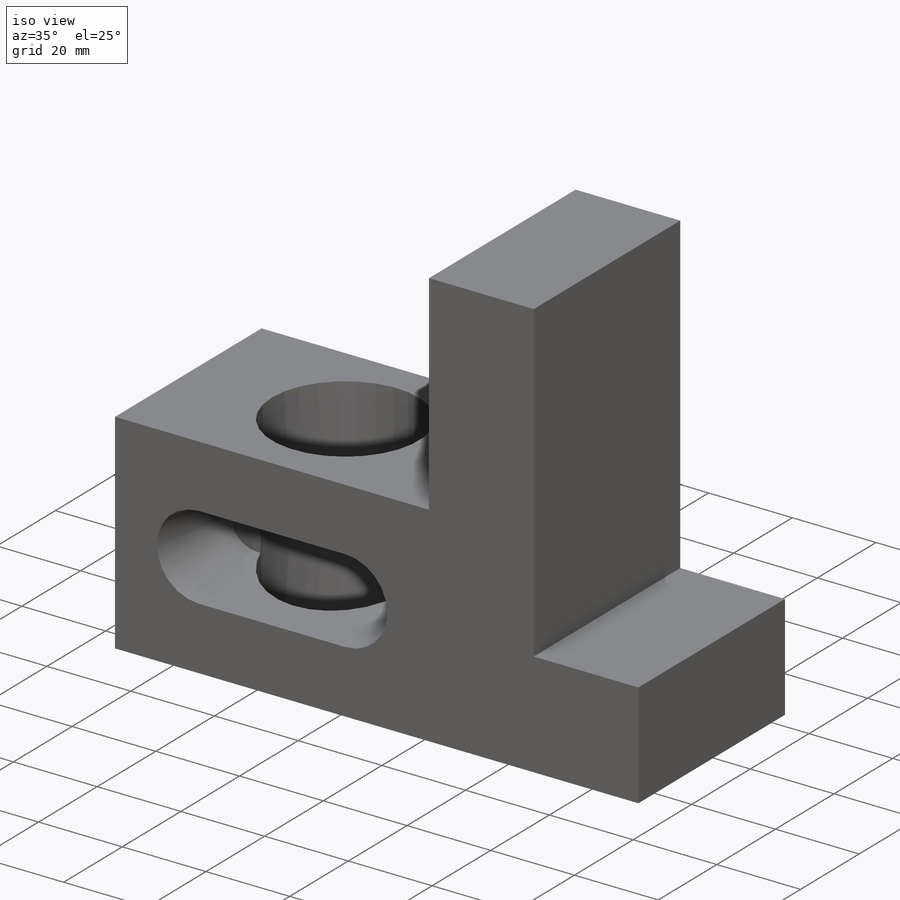
[diagram: iso view]
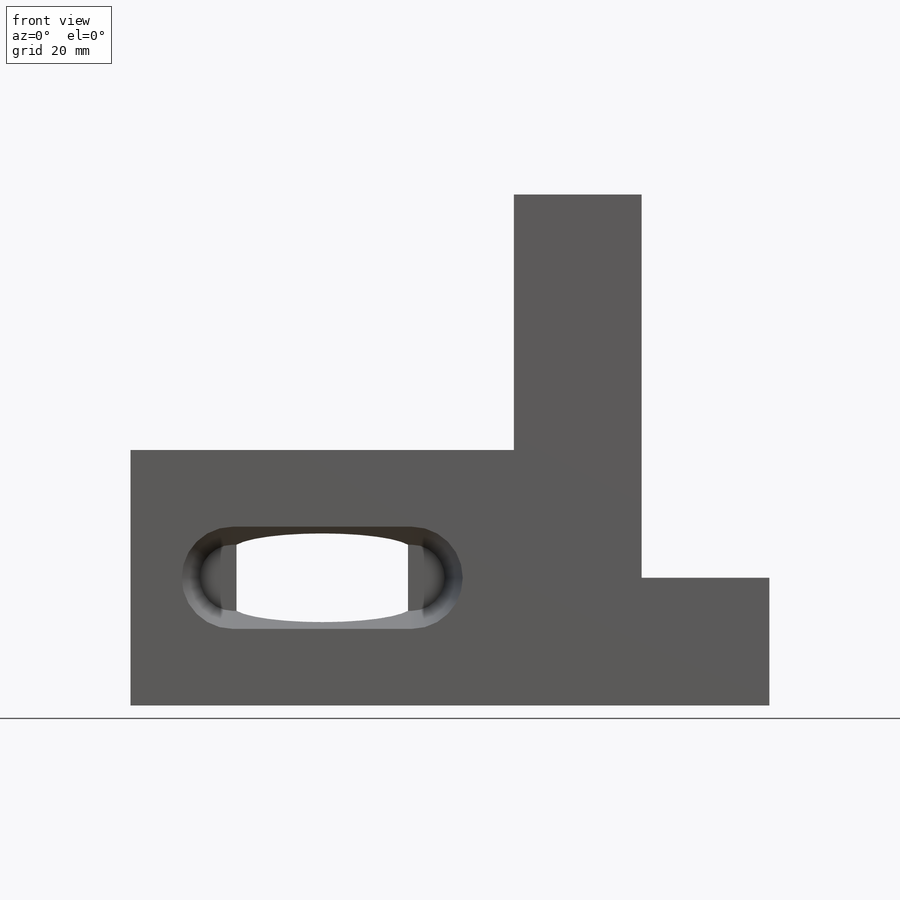
[diagram: front view]
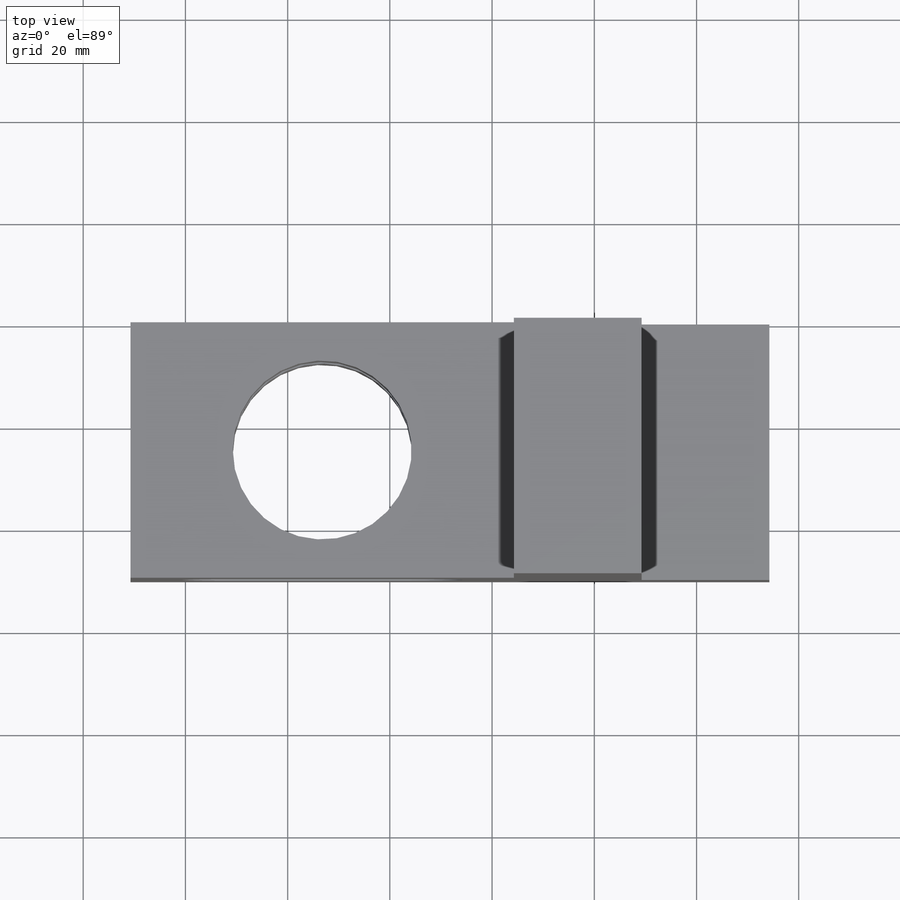
[diagram: top view]
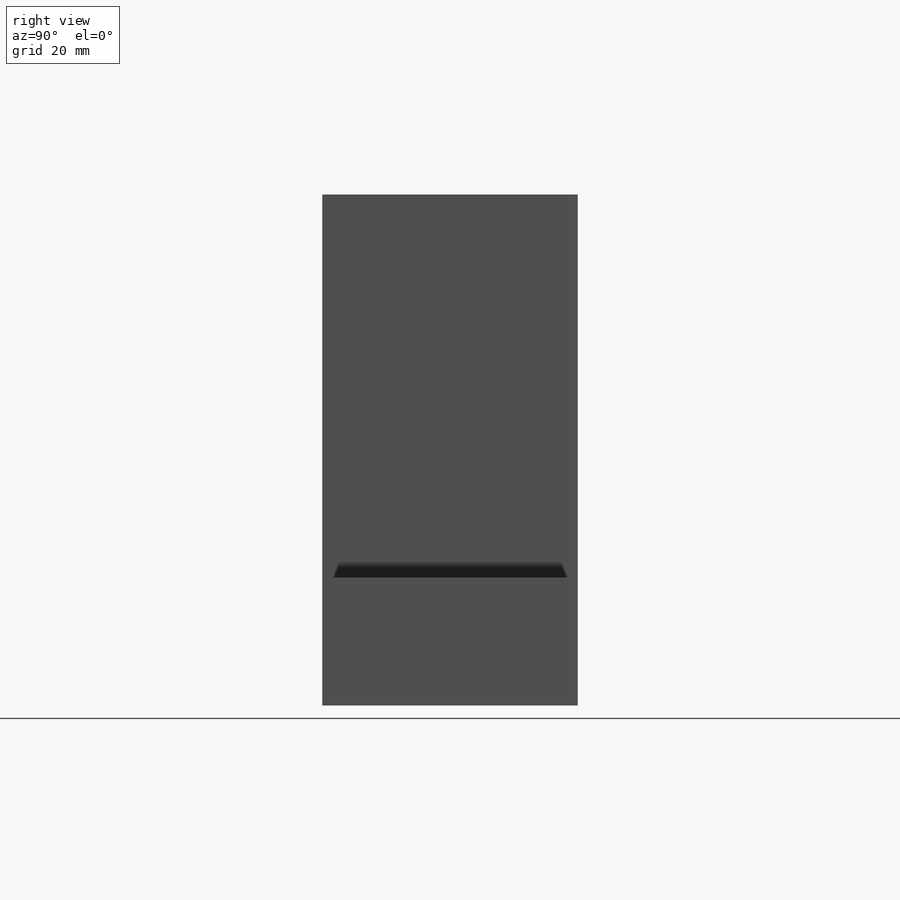
[diagram: right view]
SOLIDWORKS PART (.sldprt)
format: sldprt  version: not decoded by parser v0  size: 185,856 bytes
history: native  units: mm
features: sketch x4, cut_extrude x3, material x1, extrude x1 (+16 scaffold rows collapsed)
feature tree (25):
  scaffold x16  (default folders/planes/origin — collapsed)
  material  "Material <not specified>"
  sketch  "Sketch1"  dims[D1=50.0mm D2=75.0mm D3=100.0mm D4=25.0mm D5=25.0mm]
  extrude  "Boss-Extrude1"  Depth=50mm
  sketch  "Sketch2"  dims[c1.D2=10.0mm c1.D1=35.0mm c2.D2=50.0mm c3.D2=90.0deg c4.D2=~33.243075mm c5.D2=90.0deg c5.D3=~33.243075mm c6.D3=90.0deg c7.D3=~33.243075mm c8.D3=90.0deg c9.D3=50.0mm c10.D3=90.0deg c11.D3=50.0mm c12.D3=270.0deg c13.D3=50.0mm c14.D3=270.0deg c15.D3=25.0mm c15.D4=35.0mm c16.D4=90.0deg c17.D4=50.0mm c18.D4=90.0deg c19.D4=37.5mm]
  cut_extrude  "Cut-Extrude1"  Depth=20mm
  sketch  "Sketch3"
  cut_extrude  "Cut-Extrude2"  Depth=20mm
  sketch  "Sketch4"  dims[D1=35.0mm D2=25.0mm D3=37.5mm]
  cut_extrude  "Cut-Extrude3"  Depth=60mm
decode coverage: 7 of 8 modeling features carry decoded parameters
note: ~ marks probable driven/reference dimensions
note: suppression state not decoded; provenance and decode notes live in map.json
